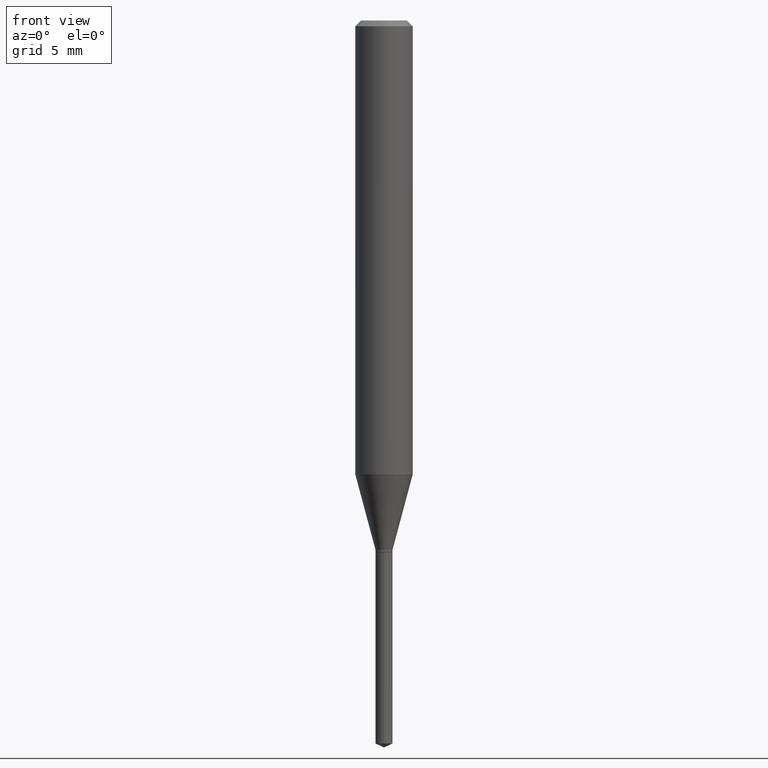
[diagram: clean part render]
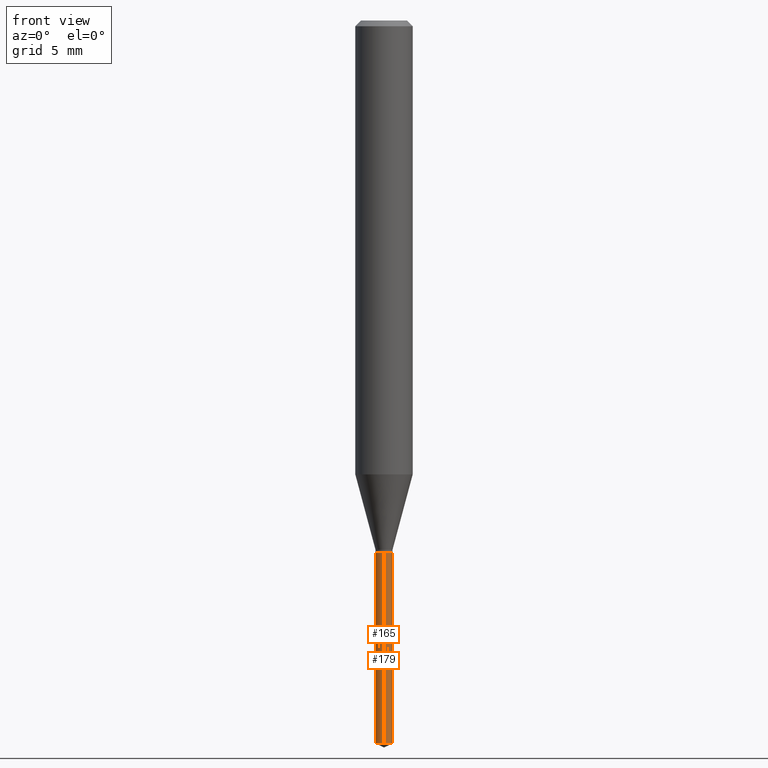
[diagram: same view with one multi-face feature highlighted, each face labeled with its STEP entity id]
A machine part, front view. The highlighted faces form ONE feature: a constant-radius fillet chain: 2 tangent blend faces with common blend radius 0.4445 mm. The faces share edges in the B-rep.
Their STEP definitions:
[1] entity #179 (Cylinder):
#17 = FACE_OUTER_BOUND ( 'NONE', #106, .T. ) ;
#45 = VECTOR ( 'NONE', #416, 39.37007874015748143 ) ;
#55 = CIRCLE ( 'NONE', #361, 0.01750000000000000167 ) ;
#57 = DIRECTION ( 'NONE',  ( -2.445470214571802116E-29, 3.491479321953280158E-15, 1.000000000000000000 ) ) ;
#69 = CARTESIAN_POINT ( 'NONE',  ( -1.222018468594828905E-16, -0.01750000000000382500, -1.094499999999999806 ) ) ;
#80 = CARTESIAN_POINT ( 'NONE',  ( 2.676565608369631794E-29, -3.821426325363822773E-15, -1.094499999999999806 ) ) ;
#95 = CARTESIAN_POINT ( 'NONE',  ( 1.243449787580539552E-16, 0.01749999999999617487, -1.094499999999999806 ) ) ;
#106 = EDGE_LOOP ( 'NONE', ( #215, #168, #186, #174 ) ) ;
#109 = EDGE_CURVE ( 'NONE', #137, #282, #423, .T. ) ;
#110 = LINE ( 'NONE', #69, #45 ) ;
#122 = CARTESIAN_POINT ( 'NONE',  ( -1.222018468594828905E-16, -0.01750000000000382500, -1.094499999999999806 ) ) ;
#128 = EDGE_CURVE ( 'NONE', #256, #282, #160, .T. ) ;
#137 = VERTEX_POINT ( 'NONE', #122 ) ;
#139 = DIRECTION ( 'NONE',  ( -6.982962677686265922E-15, -1.000000000000000000, 0.000000000000000000 ) ) ;
#155 = VECTOR ( 'NONE', #346, 39.37007874015748143 ) ;
#160 = LINE ( 'NONE', #315, #155 ) ;
#168 = ORIENTED_EDGE ( 'NONE', *, *, #128, .T. ) ;
#170 = CARTESIAN_POINT ( 'NONE',  ( 3.638710470486883638E-29, -5.195112609003218678E-15, -1.487939615982287300 ) ) ;
#174 = ORIENTED_EDGE ( 'NONE', *, *, #354, .F. ) ;
#179 = ADVANCED_FACE ( 'NONE', ( #17 ), #211, .T. ) ;
#186 = ORIENTED_EDGE ( 'NONE', *, *, #109, .F. ) ;
#203 = DIRECTION ( 'NONE',  ( -6.982962677686265922E-15, -1.000000000000000000, 0.000000000000000000 ) ) ;
#211 = CYLINDRICAL_SURFACE ( 'NONE', #262, 0.01750000000000000167 ) ;
#215 = ORIENTED_EDGE ( 'NONE', *, *, #266, .T. ) ;
#256 = VERTEX_POINT ( 'NONE', #476 ) ;
#262 = AXIS2_PLACEMENT_3D ( 'NONE', #316, #57, #203 ) ;
#266 = EDGE_CURVE ( 'NONE', #469, #256, #55, .T. ) ;
#282 = VERTEX_POINT ( 'NONE', #95 ) ;
#315 = CARTESIAN_POINT ( 'NONE',  ( 1.243449787580442917E-16, 0.01749999999999617833, -1.094499999999999806 ) ) ;
#316 = CARTESIAN_POINT ( 'NONE',  ( 2.676565608369631794E-29, -3.821426325363822773E-15, -1.094499999999999806 ) ) ;
#317 = AXIS2_PLACEMENT_3D ( 'NONE', #80, #375, #388 ) ;
#346 = DIRECTION ( 'NONE',  ( -2.445470214571802396E-29, 3.491479321953280158E-15, 1.000000000000000000 ) ) ;
#354 = EDGE_CURVE ( 'NONE', #469, #137, #110, .T. ) ;
#361 = AXIS2_PLACEMENT_3D ( 'NONE', #170, #435, #139 ) ;
#375 = DIRECTION ( 'NONE',  ( -2.445470214571802116E-29, 3.491479321953280158E-15, 1.000000000000000000 ) ) ;
#388 = DIRECTION ( 'NONE',  ( -6.982962677686265922E-15, -1.000000000000000000, 0.000000000000000000 ) ) ;
#416 = DIRECTION ( 'NONE',  ( -2.445470214571802396E-29, 3.491479321953280158E-15, 1.000000000000000000 ) ) ;
#423 = CIRCLE ( 'NONE', #317, 0.01750000000000000167 ) ;
#435 = DIRECTION ( 'NONE',  ( -2.445470214571802116E-29, 3.491479321953280158E-15, 1.000000000000000000 ) ) ;
#469 = VERTEX_POINT ( 'NONE', #488 ) ;
#476 = CARTESIAN_POINT ( 'NONE',  ( 1.243449787580539059E-16, 0.01749999999999480790, -1.487939615982287300 ) ) ;
#488 = CARTESIAN_POINT ( 'NONE',  ( -1.222018468594732763E-16, -0.01750000000000519543, -1.487939615982287300 ) ) ;
[2] entity #165 (Cylinder):
#26 = EDGE_CURVE ( 'NONE', #256, #469, #220, .T. ) ;
#33 = ORIENTED_EDGE ( 'NONE', *, *, #65, .F. ) ;
#38 = ORIENTED_EDGE ( 'NONE', *, *, #354, .T. ) ;
#45 = VECTOR ( 'NONE', #416, 39.37007874015748143 ) ;
#54 = AXIS2_PLACEMENT_3D ( 'NONE', #297, #116, #335 ) ;
#64 = CYLINDRICAL_SURFACE ( 'NONE', #302, 0.01750000000000000167 ) ;
#65 = EDGE_CURVE ( 'NONE', #282, #137, #384, .T. ) ;
#69 = CARTESIAN_POINT ( 'NONE',  ( -1.222018468594828905E-16, -0.01750000000000382500, -1.094499999999999806 ) ) ;
#95 = CARTESIAN_POINT ( 'NONE',  ( 1.243449787580539552E-16, 0.01749999999999617487, -1.094499999999999806 ) ) ;
#110 = LINE ( 'NONE', #69, #45 ) ;
#116 = DIRECTION ( 'NONE',  ( -2.445470214571802116E-29, 3.491479321953280158E-15, 1.000000000000000000 ) ) ;
#122 = CARTESIAN_POINT ( 'NONE',  ( -1.222018468594828905E-16, -0.01750000000000382500, -1.094499999999999806 ) ) ;
#128 = EDGE_CURVE ( 'NONE', #256, #282, #160, .T. ) ;
#129 = CARTESIAN_POINT ( 'NONE',  ( 2.676565608369631794E-29, -3.821426325363822773E-15, -1.094499999999999806 ) ) ;
#135 = EDGE_LOOP ( 'NONE', ( #208, #373, #38, #33 ) ) ;
#137 = VERTEX_POINT ( 'NONE', #122 ) ;
#155 = VECTOR ( 'NONE', #346, 39.37007874015748143 ) ;
#160 = LINE ( 'NONE', #315, #155 ) ;
#165 = ADVANCED_FACE ( 'NONE', ( #281 ), #64, .T. ) ;
#208 = ORIENTED_EDGE ( 'NONE', *, *, #128, .F. ) ;
#220 = CIRCLE ( 'NONE', #54, 0.01750000000000000167 ) ;
#239 = DIRECTION ( 'NONE',  ( -6.982962677686265922E-15, -1.000000000000000000, 0.000000000000000000 ) ) ;
#256 = VERTEX_POINT ( 'NONE', #476 ) ;
#272 = CARTESIAN_POINT ( 'NONE',  ( 2.676565608369631794E-29, -3.821426325363822773E-15, -1.094499999999999806 ) ) ;
#281 = FACE_OUTER_BOUND ( 'NONE', #135, .T. ) ;
#282 = VERTEX_POINT ( 'NONE', #95 ) ;
#297 = CARTESIAN_POINT ( 'NONE',  ( 3.638710470486883638E-29, -5.195112609003218678E-15, -1.487939615982287300 ) ) ;
#302 = AXIS2_PLACEMENT_3D ( 'NONE', #129, #349, #239 ) ;
#307 = DIRECTION ( 'NONE',  ( -6.982962677686265922E-15, -1.000000000000000000, 0.000000000000000000 ) ) ;
#315 = CARTESIAN_POINT ( 'NONE',  ( 1.243449787580442917E-16, 0.01749999999999617833, -1.094499999999999806 ) ) ;
#335 = DIRECTION ( 'NONE',  ( -6.982962677686265922E-15, -1.000000000000000000, 0.000000000000000000 ) ) ;
#346 = DIRECTION ( 'NONE',  ( -2.445470214571802396E-29, 3.491479321953280158E-15, 1.000000000000000000 ) ) ;
#349 = DIRECTION ( 'NONE',  ( -2.445470214571802116E-29, 3.491479321953280158E-15, 1.000000000000000000 ) ) ;
#354 = EDGE_CURVE ( 'NONE', #469, #137, #110, .T. ) ;
#373 = ORIENTED_EDGE ( 'NONE', *, *, #26, .T. ) ;
#384 = CIRCLE ( 'NONE', #448, 0.01750000000000000167 ) ;
#416 = DIRECTION ( 'NONE',  ( -2.445470214571802396E-29, 3.491479321953280158E-15, 1.000000000000000000 ) ) ;
#428 = DIRECTION ( 'NONE',  ( -2.445470214571802116E-29, 3.491479321953280158E-15, 1.000000000000000000 ) ) ;
#448 = AXIS2_PLACEMENT_3D ( 'NONE', #272, #428, #307 ) ;
#469 = VERTEX_POINT ( 'NONE', #488 ) ;
#476 = CARTESIAN_POINT ( 'NONE',  ( 1.243449787580539059E-16, 0.01749999999999480790, -1.487939615982287300 ) ) ;
#488 = CARTESIAN_POINT ( 'NONE',  ( -1.222018468594732763E-16, -0.01750000000000519543, -1.487939615982287300 ) ) ;